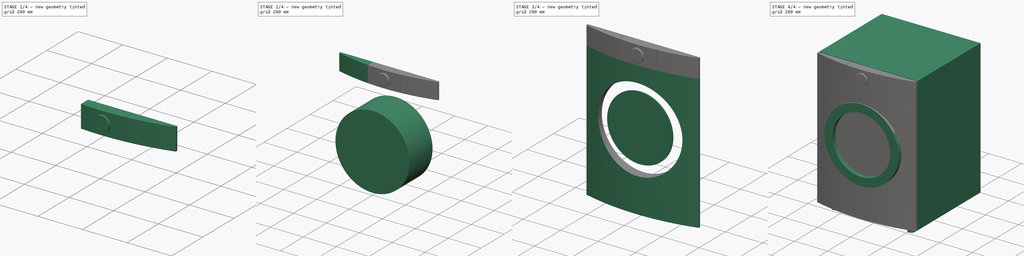
[diagram: build sequence overview — one tinted view per stage of 4, left to right]
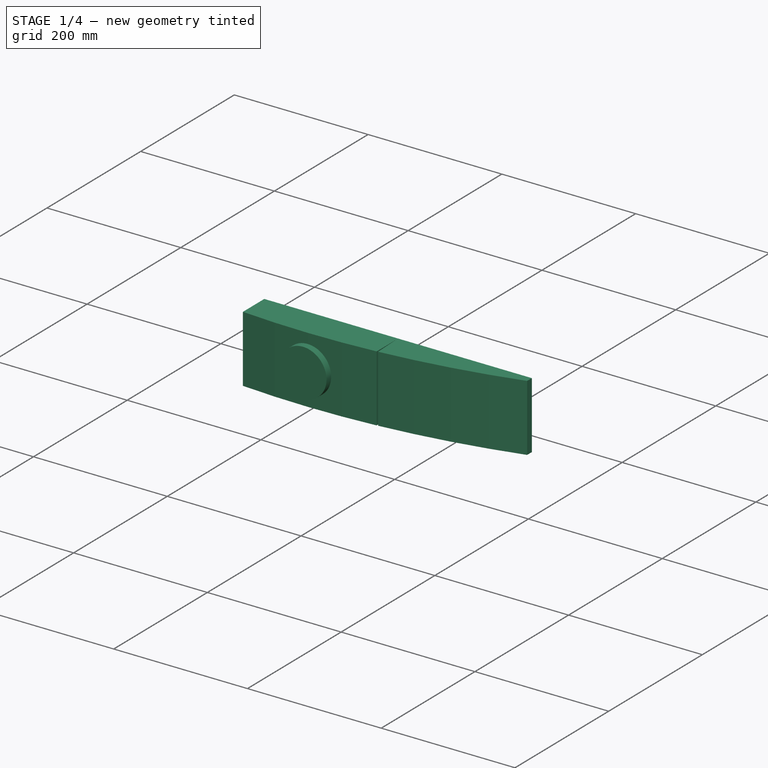
[diagram: stage 1 of 4 — iso view after this stage's code; geometry added in this stage tinted green]
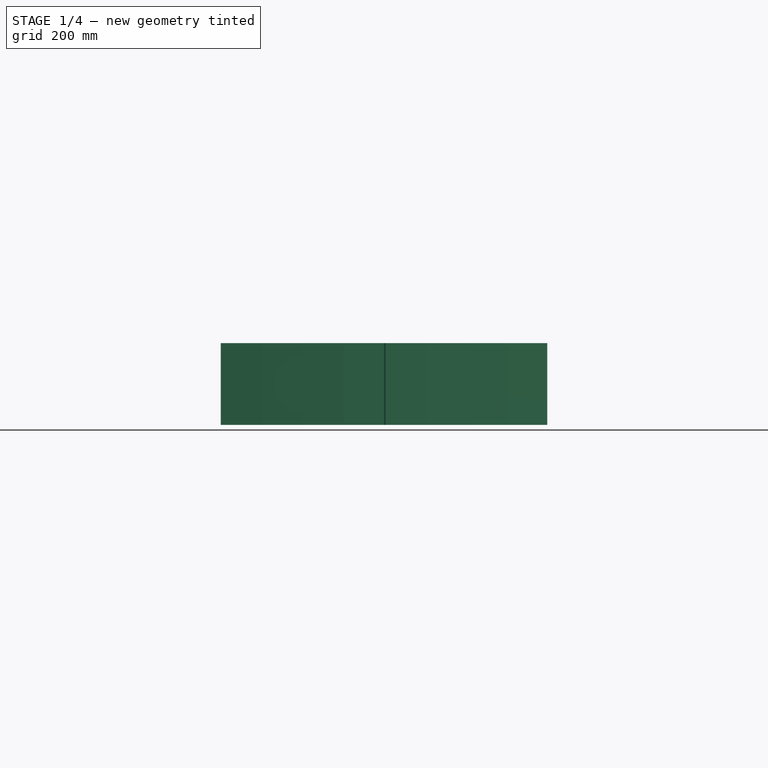
[diagram: stage 1 of 4 — front view after this stage's code; geometry added in this stage tinted green]
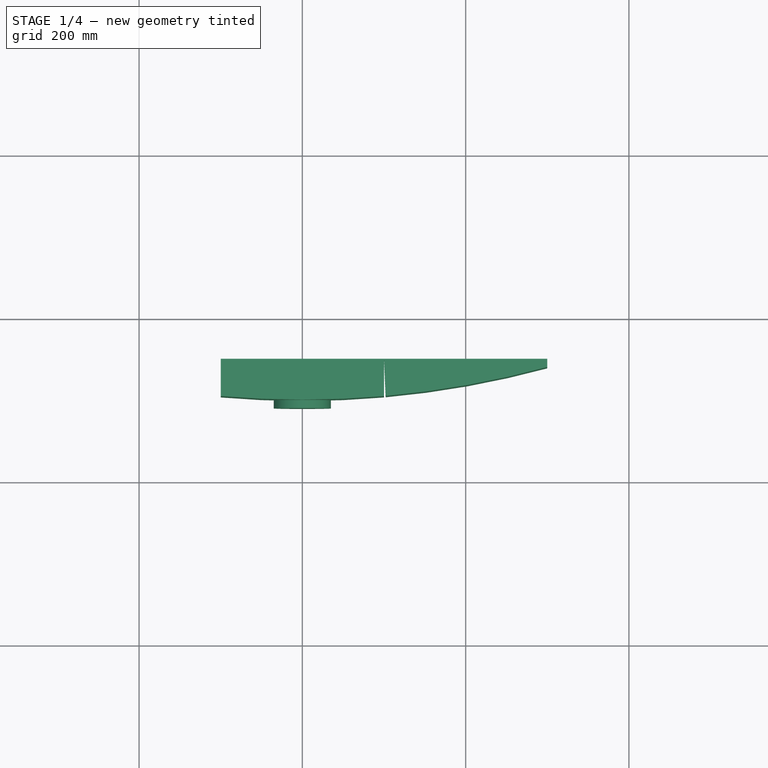
[diagram: stage 1 of 4 — top view after this stage's code; geometry added in this stage tinted green]
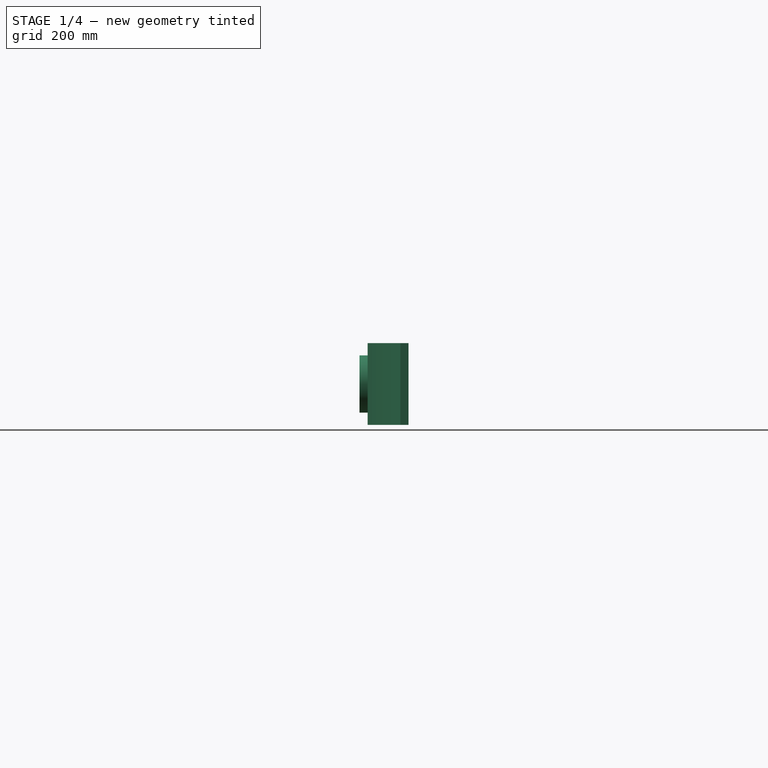
[diagram: stage 1 of 4 — right view after this stage's code; geometry added in this stage tinted green]
FCSTD DOCUMENT  (FreeCAD 0.21R33771 (Git))
Label: Washing_machine_R02
License: All rights reserved
LicenseURL: https://en.wikipedia.org/wiki/All_rights_reserved
objects: Sketcher::SketchObject×11, App::DocumentObjectGroup×10, Part::Extrusion×10, App::FeaturePython×7, App::MaterialObjectPython×6, App::TextDocument×2, App::DocumentObjectGroupPython×1, Spreadsheet::Sheet×1, Part::Cut×1, Part::Fillet×1, Part::Feature×1
note: 30 computed .brp shape members not serialized (recipe doc carries the construction recipe); baked Part::Feature solids carry a one-line shape summary decoded from their .brp

FEATURE [Sketcher::SketchObject] Sketch1072
  AttachmentOffset = pos=(0,810,300) rot=(0,0,1;0rad)
  FullyConstrained = true
  MapMode = 3
  Placement = pos=(0,-300,810) rot=(1,0,0;1.5708rad)
  Support = -> [Sketch022]
  expr: .AttachmentOffset.Base.y = Prop.Feet_B_Height + Prop.Base_dimensions_B_Height - Prop.Feet_B_Height - 50 mm
  expr: .AttachmentOffset.Base.z = Prop.Base_dimensions_B_Depth / 2
  sketch-geometry (1):
    g0: Circle CenterX=0 CenterY=0 CenterZ=0 NormalX=0 NormalY=0 NormalZ=1 AngleXU=0 Radius=35
  constraints (2):
    c: Radius(g0) = 35
    c: Coincident(g-1,g0)
FEATURE [Part::Extrusion] Extrude084143105
  Base = -> Sketch1072
  Dir = (0,-1,2e-16)
  DirMode = 2
  FaceMakerClass = Part::FaceMakerBullseye
  LengthFwd = 10
  LengthRev = 0
  Solid = true
  Symmetric = false
FEATURE [Sketcher::SketchObject] Sketch1074
  ExternalGeometry = -> [Sketch022]
  FullyConstrained = true
  MapMode = 2
  Support = -> [Sketch022]
  expr: .Constraints.Thickness = Prop.Front_panels_B_Thickness
  expr: Constraints[15] = Prop.Base_dimensions_B_Width / 3
  expr: Constraints[16] = Prop.Base_dimensions_B_Width / 3
  sketch-geometry (10):
    g0: LineSegment StartX=300 StartY=-260 StartZ=0 EndX=300 EndY=-250 EndZ=0
    g1: LineSegment StartX=300 StartY=-250 StartZ=0 EndX=-300 EndY=-250 EndZ=0
    g2: LineSegment StartX=-300 StartY=-250 StartZ=0 EndX=-300 EndY=-260 EndZ=0
    g3: ArcOfCircle CenterX=0 CenterY=845 CenterZ=0 NormalX=0 NormalY=0 NormalZ=1 AngleXU=0 Radius=1145 StartAngle=4.44729 EndAngle=4.97749
    g4: LineSegment StartX=-100 StartY=-250 StartZ=0 EndX=-100 EndY=-295.625 EndZ=0
    g5: LineSegment StartX=100 StartY=-250 StartZ=0 EndX=100 EndY=-295.625 EndZ=0
    g6: LineSegment StartX=-100 StartY=-295.625 StartZ=0 EndX=-100 EndY=-250 EndZ=0
    g7: LineSegment StartX=-100 StartY=-250 StartZ=0 EndX=100 EndY=-250 EndZ=0
    g8: LineSegment StartX=100 StartY=-250 StartZ=0 EndX=100 EndY=-295.625 EndZ=0
    g9: ArcOfCircle CenterX=0 CenterY=845 CenterZ=0 NormalX=0 NormalY=0 NormalZ=1 AngleXU=0 Radius=1145 StartAngle=4.62494 EndAngle=4.79984
  constraints (29):
    c: Coincident(g0,g1)
    c: Coincident(g1,g2)
    c: Horizontal(g1)
    c: Vertical(g0)
    c: Vertical(g2)
    c: PointOnObject(g0,g-4)
    c: PointOnObject(g3,g-2)
    c: Coincident(g3,g2)
    c: Coincident(g3,g0)
    c: PointOnObject(g1,g-3)
    c: Tangent(g3,g-5)
    c: DistanceY(g-5,g0) = 50  'Thickness'
    c: DistanceY(g0,g0) = 10
    c: Vertical(g4)
    c: Vertical(g5)
    c: DistanceX(g-5,g4) = 200
    c: DistanceX(g5,g-5) = 200
    c: PointOnObject(g4,g1)
    c: PointOnObject(g5,g1)
    c: PointOnObject(g5,g3)
    c: Coincident(g4,g6)
    c: Coincident(g6,g4)
    c: Coincident(g6,g7)
    c: Coincident(g7,g5)
    c: Coincident(g7,g8)
    c: Coincident(g8,g5)
    c: Coincident(g9,g3)
    c: Coincident(g9,g6)
    c: Coincident(g9,g8)
FEATURE [Sketcher::SketchObject] Sketch1075
  ExternalGeometry = -> [Sketch022]
  FullyConstrained = false
  MapMode = 2
  Support = -> [Sketch022]
  expr: .Constraints.Thickness = Prop.Front_panels_B_Thickness
  expr: Constraints[15] = Prop.Base_dimensions_B_Width / 3
  expr: Constraints[16] = Prop.Base_dimensions_B_Width / 3 - 2 mm
  sketch-geometry (10):
    g0: LineSegment StartX=300 StartY=-260 StartZ=0 EndX=300 EndY=-250 EndZ=0
    g1: LineSegment StartX=300 StartY=-250 StartZ=0 EndX=-300 EndY=-250 EndZ=0
    g2: LineSegment StartX=-300 StartY=-250 StartZ=0 EndX=-300 EndY=-260 EndZ=0
    g3: ArcOfCircle CenterX=0 CenterY=845 CenterZ=0 NormalX=0 NormalY=0 NormalZ=1 AngleXU=0 Radius=1145 StartAngle=4.44729 EndAngle=4.97749
    g4: LineSegment StartX=-100 StartY=-250 StartZ=0 EndX=-100 EndY=-295.625 EndZ=0
    g5: LineSegment StartX=102 StartY=-250 StartZ=0 EndX=102 EndY=-295.448 EndZ=0
    g6: ArcOfCircle CenterX=0 CenterY=845 CenterZ=0 NormalX=0 NormalY=0 NormalZ=1 AngleXU=0 Radius=1145 StartAngle=4.80159 EndAngle=4.97749
    g7: LineSegment StartX=102 StartY=-295.448 StartZ=0 EndX=100 EndY=-250 EndZ=0
    g8: LineSegment StartX=100 StartY=-250 StartZ=0 EndX=300 EndY=-250 EndZ=0
    g9: LineSegment StartX=300 StartY=-250 StartZ=0 EndX=300 EndY=-260 EndZ=0
  constraints (29):
    c: Coincident(g0,g1)
    c: Coincident(g1,g2)
    c: Horizontal(g1)
    c: Vertical(g0)
    c: Vertical(g2)
    c: PointOnObject(g0,g-4)
    c: PointOnObject(g3,g-2)
    c: Coincident(g3,g2)
    c: Coincident(g3,g0)
    c: PointOnObject(g1,g-3)
    c: Tangent(g3,g-5)
    c: DistanceY(g-5,g0) = 50  'Thickness'
    c: DistanceY(g0,g0) = 10
    c: Vertical(g4)
    c: Vertical(g5)
    c: DistanceX(g-5,g4) = 200
    c: DistanceX(g5,g-5) = 198
    c: PointOnObject(g4,g1)
    c: PointOnObject(g5,g1)
    c: PointOnObject(g4,g3)
    c: Coincident(g6,g3)
    c: Coincident(g6,g5)
    c: Coincident(g6,g0)
    c: Coincident(g6,g7)
    c: Coincident(g7,g8)
    c: Coincident(g8,g0)
    c: Horizontal(g8)
    c: Coincident(g8,g9)
    c: Coincident(g9,g6)
FEATURE [Part::Extrusion] Extrude084143106  label="02-Knob_panel_"
  Base = -> Sketch1074
  Dir = (0,0,1)
  DirMode = 2
  FaceMakerClass = Part::FaceMakerBullseye
  LengthFwd = 100
  LengthRev = 0
  Material = -> Material014
  Placement = pos=(0,0,760) rot=(0,0,1;0rad)
  Solid = true
  Symmetric = false
  expr: .Placement.Base.z = Prop.Feet_B_Height + Prop.Base_dimensions_B_Height - Prop.Feet_B_Height - 100 mm
  expr: LengthFwd = 100 mm
  expr: Material = Prop.Front_panels_C_Knob_panel_material
  expr: Visibility = Prop.Visualization_A_Visualization
FEATURE [Part::Extrusion] Extrude084143107  label="02-Display_panel"
  Base = -> Sketch1075
  Dir = (0,0,1)
  DirMode = 2
  FaceMakerClass = Part::FaceMakerBullseye
  LengthFwd = 100
  LengthRev = 0
  Material = -> Material037
  Placement = pos=(0,0,760) rot=(0,0,1;0rad)
  Solid = true
  Symmetric = false
  expr: .Placement.Base.z = Prop.Feet_B_Height + Prop.Base_dimensions_B_Height - Prop.Feet_B_Height - 100 mm
  expr: LengthFwd = 100 mm
  expr: Material = Prop.Front_panels_C_Display_panel_material
  expr: Visibility = Prop.Visualization_A_Visualization
FEATURE [App::DocumentObjectGroup] Group248  label="03-Component_parts_"
  Group = -> [Extrude,Cut,Extrude084143104,Fillet,Extrude084143106,Extrude084143107,Extrude084143103,Extrude084143101,Extrude003]
  expr: Visibility = True
FEATURE [App::FeaturePython] Section  label="Section_Plan_01"  # WARN: FeaturePython — macro-defined, semantics opaque (R4)
  Clip = false
  Depth = 0
  Objects = -> [Group248]
  OnlySolids = true
  Placement = pos=(0,0,500) rot=(0,0,1;0rad)
  UseMaterialColorForFill = false
FEATURE [App::FeaturePython] Section001  label="Section001_Plan_02"  # WARN: FeaturePython — macro-defined, semantics opaque (R4)
  Clip = false
  Depth = 0
  Objects = -> [Group248]
  OnlySolids = true
  Placement = pos=(0,0,2100) rot=(0,0,1;0rad)
  UseMaterialColorForFill = false
FEATURE [App::FeaturePython] Section002  label="Section002_Lateral_01"  # WARN: FeaturePython — macro-defined, semantics opaque (R4)
  Clip = false
  Depth = 0
  Objects = -> [Group248]
  OnlySolids = true
  Placement = pos=(1500,0,600) rot=(0.57735,0.57735,0.57735;2.0944rad)
  UseMaterialColorForFill = false
FEATURE [App::FeaturePython] Section003  label="Section003_Transversal"  # WARN: FeaturePython — macro-defined, semantics opaque (R4)
  Clip = false
  Depth = 0
  Objects = -> [Group248]
  OnlySolids = true
  Placement = pos=(0,0,600) rot=(0.57735,0.57735,0.57735;2.0944rad)
  UseMaterialColorForFill = false
FEATURE [App::FeaturePython] Section004  label="Section004_Lateral_02"  # WARN: FeaturePython — macro-defined, semantics opaque (R4)
  Clip = false
  Depth = 0
  Objects = -> [Group248]
  OnlySolids = true
  Placement = pos=(-1500,0,600) rot=(-0.57735,0.57735,0.57735;4.18879rad)
  UseMaterialColorForFill = false
FEATURE [App::FeaturePython] Section005  label="Section005_Frontal_"  # WARN: FeaturePython — macro-defined, semantics opaque (R4)
  Clip = false
  Depth = 0
  Objects = -> [Group248]
  OnlySolids = true
  Placement = pos=(0,-1300,600) rot=(1,0,0;1.5708rad)
  UseMaterialColorForFill = false
FEATURE [App::DocumentObjectGroup] Group001  label="Section"
  Group = -> [Section,Section001,Section002,Section003,Section004,Section005]
FEATURE [App::DocumentObjectGroup] Group246  label="02-Elements_to_move_rotate_"
  Group = -> [Sketch022,Group001]
FEATURE [App::DocumentObjectGroup] Group  label="04-Spreadsheet_"
  Group = -> [Spreadsheet003]
FEATURE [App::DocumentObjectGroup] Group249  label="05-Materials_"
  Group = -> [MaterialContainer]
FEATURE [App::TextDocument] Text_document001  label="Guidelines_new_objects_properties_"
  Text = <blob: 2847 chars omitted>
FEATURE [App::TextDocument] Text_document  label="Guidelines_washing_machine_file_configurations_"
  Text = Some guidelines for using this component file.\n-----------------------------------------\n\n1. Basic workflow for component configuration (see video)\n\nThrough the properties window ("01-Prop_Washing_machine_configurations_#_") it is possible to configure the basic dimensions of the component (height, length, and depth) and its parts such as panels (main and superiores), and door, as well their respective materials.\n\n2. Component insertion\n\nOpen the "02-Elements_to_move_rotate" folder and select the "Washing_machine_base_move_rotate_#_" Sketch. If you are going to use the 2D projections of the component in your project, also select the sections from the “Sections” folder as needed (for plans, sections, and views).\n\nDrag the selection to the final insertion position of the component in the project, rotating it later if necessary. Make new configurations of the component if necessary.\n\n3. To generate the corresponding 2D projections, use the pre-established sections by adding the necessary objects to them and click on "Shape 2D view" (Draft_Shape2DView).\n\n4. Cautions:\n\n4.1. Set dimensions and quantities close to those used in reality, otherwise it could destroy the structure of a piece or the assembly itself.\n\n4.2. Where applicable, one of the main considerations when configuring arrays is to avoid accidentally assign large values ​​(hundreds or thousands) for the quantities of parts of the part, for example.\n\n4.4. When searching for a profile or material, use the folder according to the type one is looking for, this will make the task much easier. Materials, for example, are organized into different groups (see video).
FEATURE [App::DocumentObjectGroup] Group250  label="06-Guidelines_"
  Group = -> [Text_document,Text_document001]
FEATURE [Part::Feature] Prop  label="01-Prop_Washing_machine_configurations_#_"
  Base_dimensions_B_Depth = 600
  Base_dimensions_B_Height = 860
  Base_dimensions_B_Width = 600
  Body_C_Material = -> Material042
  Door_B_Diameter = 450
  Door_B_Vertical_position = 450
  Door_C_Material = -> Material037
  Door_frame_B_Thickness = 50
  Door_frame_C_Material = -> Material014
  Feet_B_Diameter = 40
  Feet_B_Height = 40
  Feet_C_Material = -> Material014
  Front_panels_B_Thickness = 50
  Front_panels_C_Detergent_drawer_material = -> Material014
  Front_panels_C_Display_panel_material = -> Material037
  Front_panels_C_Front_panel_material = -> Material042
  Front_panels_C_Knob_material = -> Material042
  Front_panels_C_Knob_panel_material = -> Material014
  Visualization_A_Visualization = true
FEATURE [App::DocumentObjectGroup] Group253  label="Washing_machine_#_"
  Group = -> [Prop,Group246,Group248,Group,Group249,Group250]
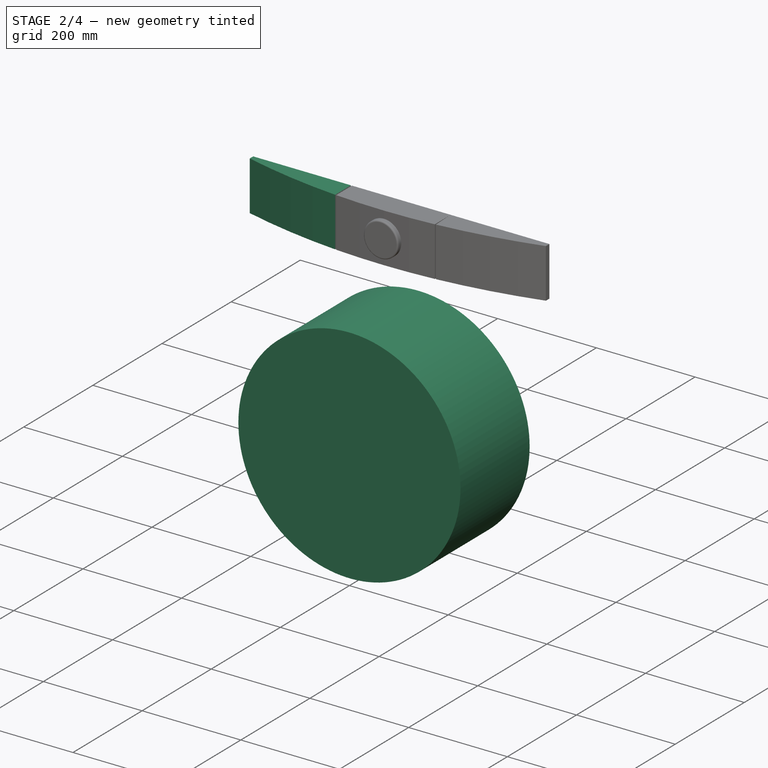
[diagram: stage 2 of 4 — iso view after this stage's code; geometry added in this stage tinted green]
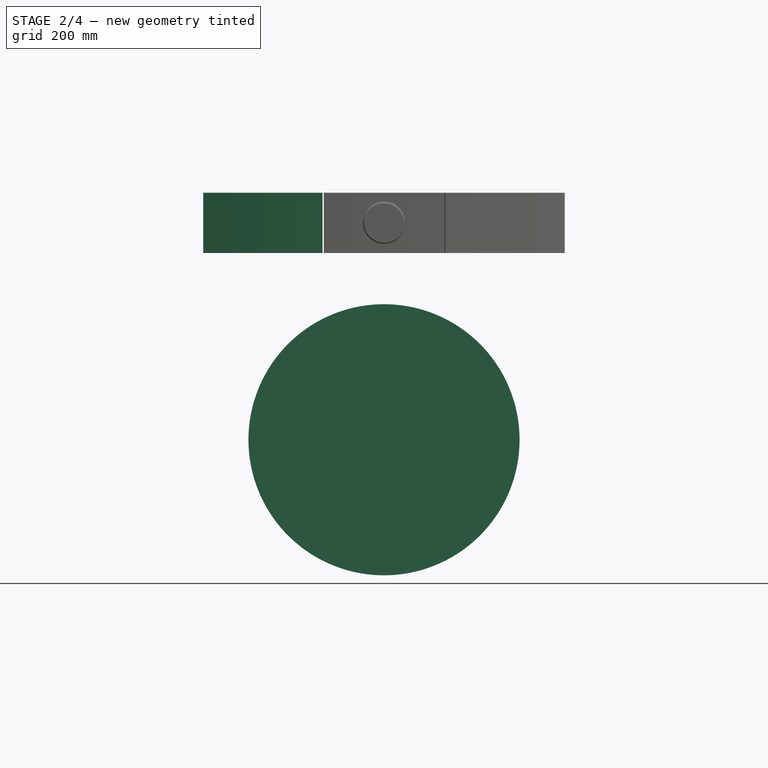
[diagram: stage 2 of 4 — front view after this stage's code; geometry added in this stage tinted green]
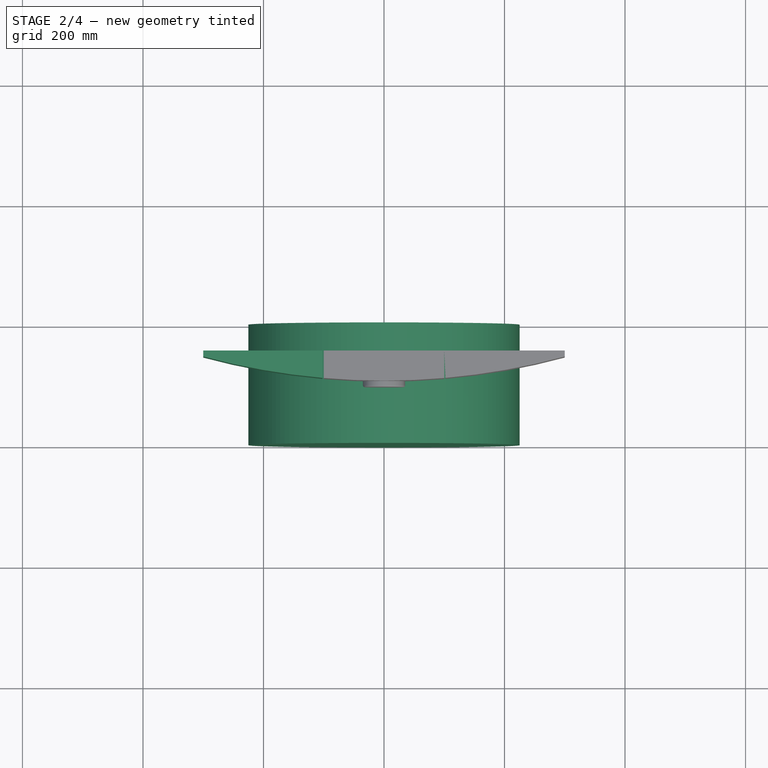
[diagram: stage 2 of 4 — top view after this stage's code; geometry added in this stage tinted green]
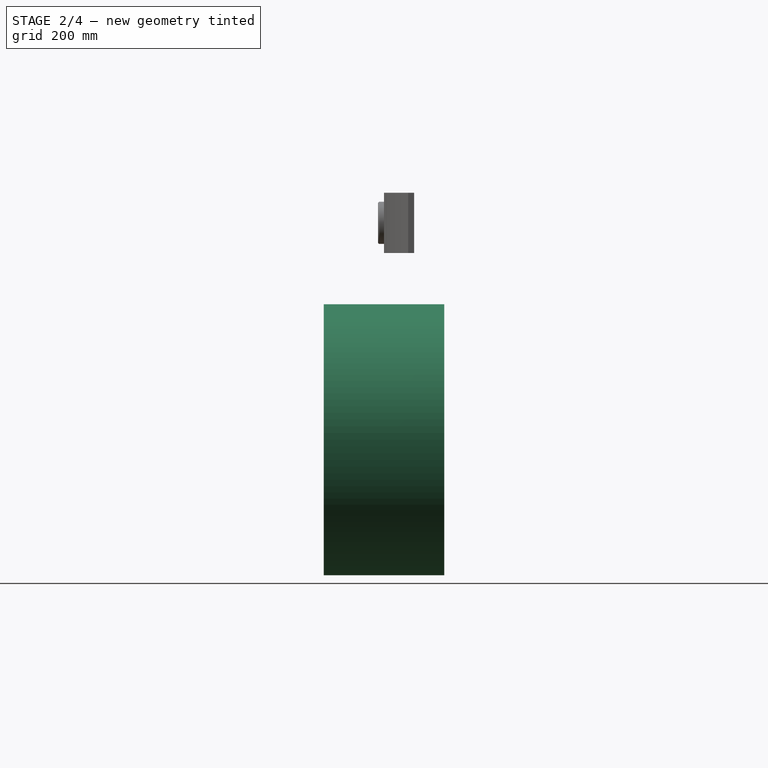
[diagram: stage 2 of 4 — right view after this stage's code; geometry added in this stage tinted green]
FEATURE [Sketcher::SketchObject] Sketch1070  label="Sketch1070_Dooor_opening_"
  AttachmentOffset = pos=(0,450,300) rot=(0,0,1;0rad)
  FullyConstrained = true
  MapMode = 3
  Placement = pos=(0,-300,450) rot=(1,0,0;1.5708rad)
  Support = -> [Sketch022]
  expr: .AttachmentOffset.Base.y = Prop.Door_B_Vertical_position
  expr: .AttachmentOffset.Base.z = Prop.Base_dimensions_B_Depth / 2
  expr: .Constraints.Radius = Prop.Door_B_Diameter / 2
  sketch-geometry (1):
    g0: Circle CenterX=0 CenterY=0 CenterZ=0 NormalX=0 NormalY=0 NormalZ=1 AngleXU=0 Radius=225
  constraints (2):
    c: Radius(g0) = 225  'Radius'
    c: Coincident(g0,g-1)
FEATURE [Part::Extrusion] Extrude084143102
  Base = -> Sketch1070
  Dir = (0,-1,2e-16)
  DirMode = 2
  FaceMakerClass = Part::FaceMakerBullseye
  LengthFwd = 200
  LengthRev = 0
  Solid = true
  Symmetric = true
FEATURE [Part::Fillet] Fillet  label="02-Knob_"
  Base = -> Extrude084143105
  Edges = 1 edges r=3: [Edge3]
  Material = -> Material042
  expr: Material = Prop.Front_panels_C_Knob_material
  expr: Visibility = Prop.Visualization_A_Visualization
FEATURE [Sketcher::SketchObject] Sketch1073
  ExternalGeometry = -> [Sketch022]
  FullyConstrained = false
  MapMode = 2
  Support = -> [Sketch022]
  expr: .Constraints.Thickness = Prop.Front_panels_B_Thickness
  expr: Constraints[15] = Prop.Base_dimensions_B_Width / 3 - 2 mm
  expr: Constraints[16] = Prop.Base_dimensions_B_Width / 3
  sketch-geometry (13):
    g0: LineSegment StartX=300 StartY=-260 StartZ=0 EndX=300 EndY=-250 EndZ=0
    g1: LineSegment StartX=300 StartY=-250 StartZ=0 EndX=-300 EndY=-250 EndZ=0
    g2: LineSegment StartX=-300 StartY=-250 StartZ=0 EndX=-300 EndY=-260 EndZ=0
    g3: ArcOfCircle CenterX=0 CenterY=845 CenterZ=0 NormalX=0 NormalY=0 NormalZ=1 AngleXU=0 Radius=1145 StartAngle=4.44729 EndAngle=4.97749
    g4: LineSegment StartX=-102 StartY=-250 StartZ=0 EndX=-102 EndY=-295.448 EndZ=0
    g5: LineSegment StartX=100 StartY=-250 StartZ=0 EndX=100 EndY=-295.625 EndZ=0
    g6: LineSegment StartX=-102 StartY=-250 StartZ=0 EndX=-300 EndY=-250 EndZ=0
    g7: LineSegment StartX=-300 StartY=-250 StartZ=0 EndX=-300 EndY=-260 EndZ=0
    g8: LineSegment StartX=-100 StartY=-295.625 StartZ=0 EndX=-102 EndY=-250 EndZ=0
    g9: ArcOfCircle CenterX=0 CenterY=845 CenterZ=0 NormalX=0 NormalY=0 NormalZ=1 AngleXU=0 Radius=1145 StartAngle=4.44729 EndAngle=4.62319
    g10: LineSegment StartX=-300 StartY=-260 StartZ=0 EndX=-300 EndY=-250 EndZ=0
    g11: LineSegment StartX=-300 StartY=-250 StartZ=0 EndX=-102 EndY=-250 EndZ=0
    g12: LineSegment StartX=-102 StartY=-250 StartZ=0 EndX=-102 EndY=-295.448 EndZ=0
  constraints (34):
    c: Coincident(g0,g1)
    c: Coincident(g1,g2)
    c: Horizontal(g1)
    c: Vertical(g0)
    c: Vertical(g2)
    c: PointOnObject(g0,g-4)
    c: PointOnObject(g3,g-2)
    c: Coincident(g3,g2)
    c: Coincident(g3,g0)
    c: PointOnObject(g1,g-3)
    c: Tangent(g3,g-5)
    c: DistanceY(g-5,g0) = 50  'Thickness'
    c: DistanceY(g0,g0) = 10
    c: Vertical(g4)
    c: Vertical(g5)
    c: DistanceX(g-5,g4) = 198
    c: DistanceX(g5,g-5) = 200
    c: PointOnObject(g4,g1)
    c: PointOnObject(g5,g1)
    c: PointOnObject(g5,g3)
    c: Coincident(g4,g6)
    c: Coincident(g6,g1)
    c: Coincident(g6,g7)
    c: Coincident(g7,g2)
    c: Coincident(g8,g6)
    c: Coincident(g9,g3)
    c: Coincident(g9,g2)
    c: Coincident(g9,g4)
    c: Coincident(g9,g10)
    c: Coincident(g10,g1)
    c: Coincident(g10,g11)
    c: Coincident(g11,g4)
    c: Coincident(g11,g12)
    c: Coincident(g12,g9)
FEATURE [Part::Extrusion] Extrude084143104  label="02-Detergent_drawer_"
  Base = -> Sketch1073
  Dir = (0,0,1)
  DirMode = 2
  FaceMakerClass = Part::FaceMakerBullseye
  LengthFwd = 100
  LengthRev = 0
  Material = -> Material014
  Placement = pos=(0,0,760) rot=(0,0,1;0rad)
  Solid = true
  Symmetric = false
  expr: .Placement.Base.z = Prop.Feet_B_Height + Prop.Base_dimensions_B_Height - Prop.Feet_B_Height - 100 mm
  expr: LengthFwd = 100 mm
  expr: Material = Prop.Front_panels_C_Detergent_drawer_material
  expr: Visibility = Prop.Visualization_A_Visualization
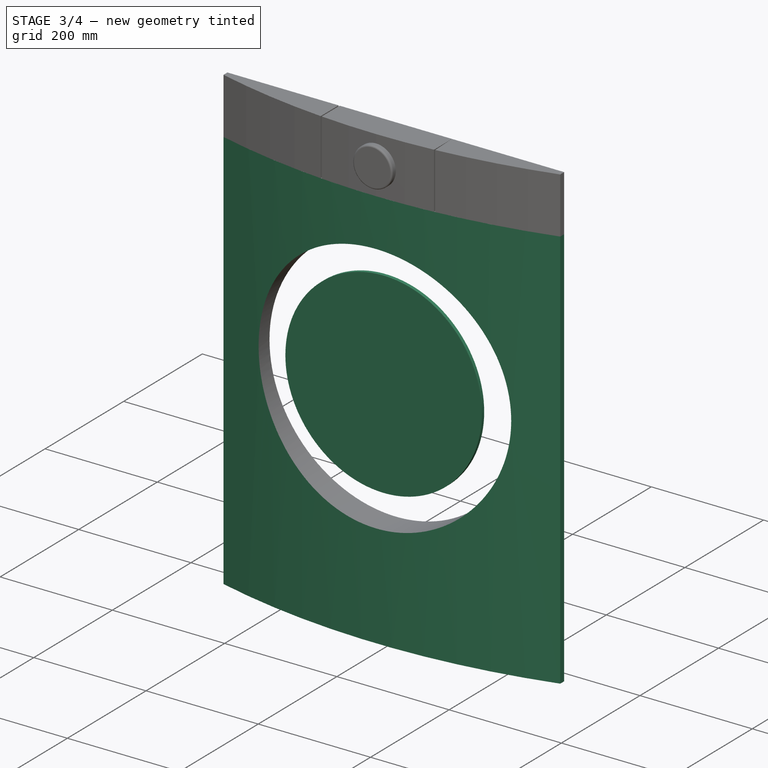
[diagram: stage 3 of 4 — iso view after this stage's code; geometry added in this stage tinted green]
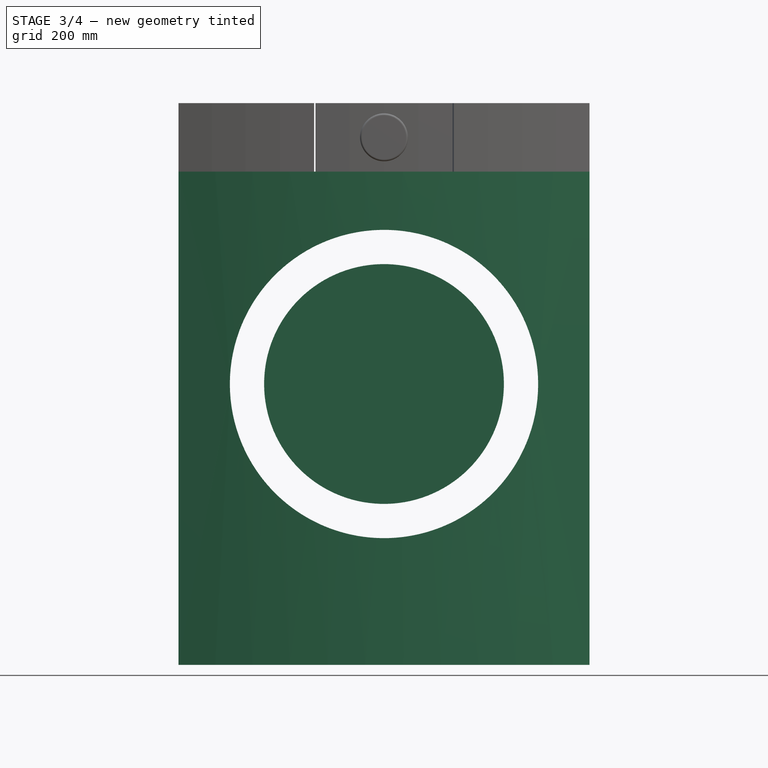
[diagram: stage 3 of 4 — front view after this stage's code; geometry added in this stage tinted green]
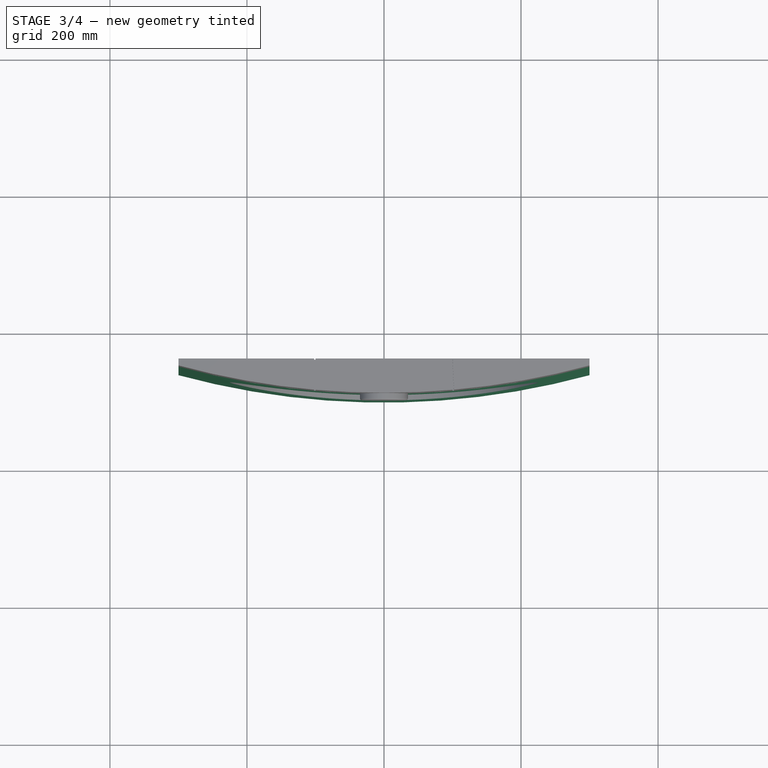
[diagram: stage 3 of 4 — top view after this stage's code; geometry added in this stage tinted green]
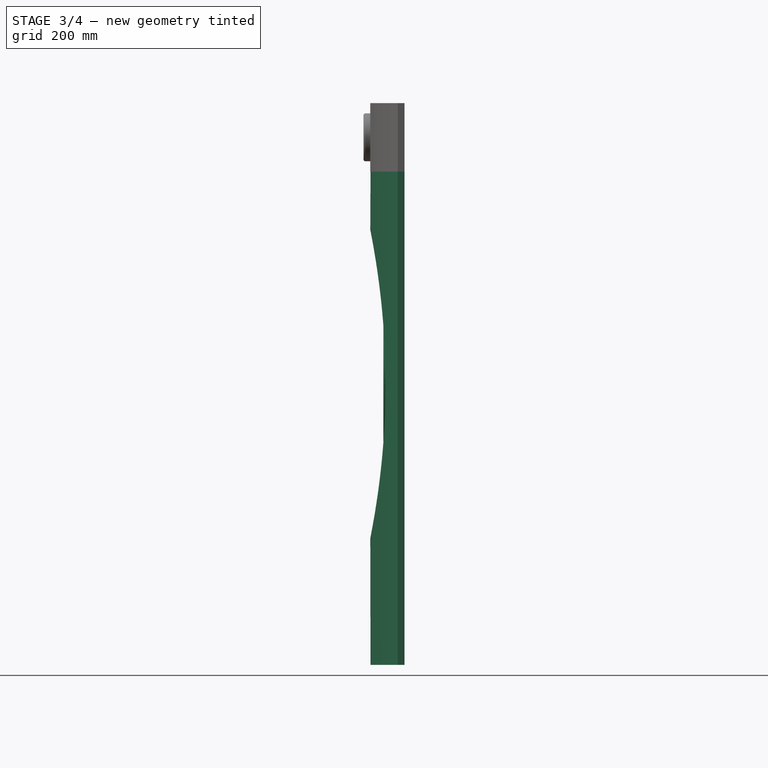
[diagram: stage 3 of 4 — right view after this stage's code; geometry added in this stage tinted green]
FEATURE [Sketcher::SketchObject] Sketch027
  ExternalGeometry = -> [Sketch022]
  FullyConstrained = true
  MapMode = 2
  Support = -> [Sketch022]
  expr: .Constraints.Thickness = Prop.Front_panels_B_Thickness
  sketch-geometry (4):
    g0: LineSegment StartX=300 StartY=-260 StartZ=0 EndX=300 EndY=-250 EndZ=0
    g1: LineSegment StartX=300 StartY=-250 StartZ=0 EndX=-300 EndY=-250 EndZ=0
    g2: LineSegment StartX=-300 StartY=-250 StartZ=0 EndX=-300 EndY=-260 EndZ=0
    g3: ArcOfCircle CenterX=0 CenterY=845 CenterZ=0 NormalX=0 NormalY=0 NormalZ=1 AngleXU=0 Radius=1145 StartAngle=4.44729 EndAngle=4.97749
  constraints (13):
    c: Coincident(g0,g1)
    c: Coincident(g1,g2)
    c: Horizontal(g1)
    c: Vertical(g0)
    c: Vertical(g2)
    c: PointOnObject(g0,g-4)
    c: PointOnObject(g3,g-2)
    c: Coincident(g3,g2)
    c: Coincident(g3,g0)
    c: PointOnObject(g1,g-3)
    c: Tangent(g3,g-5)
    c: DistanceY(g-5,g0) = 50  'Thickness'
    c: DistanceY(g0,g0) = 10
FEATURE [Part::Extrusion] Extrude007  label="02-Front_panel_"
  Base = -> Sketch027
  Dir = (0,0,1)
  DirMode = 2
  FaceMakerClass = Part::FaceMakerBullseye
  LengthFwd = 720
  LengthRev = 0
  Placement = pos=(0,0,40) rot=(0,0,1;0rad)
  Solid = true
  Symmetric = false
  expr: .Placement.Base.z = Prop.Feet_B_Height
  expr: LengthFwd = Prop.Base_dimensions_B_Height - Prop.Feet_B_Height - 100 mm
FEATURE [Sketcher::SketchObject] Sketch1071  label="Sketch1071_glass_"
  AttachmentOffset = pos=(0,450,275) rot=(0,0,1;0rad)
  FullyConstrained = true
  MapMode = 3
  Placement = pos=(0,-275,450) rot=(1,0,0;1.5708rad)
  Support = -> [Sketch022]
  expr: .AttachmentOffset.Base.y = Prop.Door_B_Vertical_position
  expr: .AttachmentOffset.Base.z = Prop.Base_dimensions_B_Depth / 2 - Prop.Front_panels_B_Thickness / 2
  expr: .Constraints.Radius = Prop.Door_B_Diameter / 2 - Prop.Door_frame_B_Thickness
  sketch-geometry (1):
    g0: Circle CenterX=0 CenterY=0 CenterZ=0 NormalX=0 NormalY=0 NormalZ=1 AngleXU=0 Radius=175
  constraints (2):
    c: Radius(g0) = 175  'Radius'
    c: Coincident(g0,g-1)
FEATURE [Part::Extrusion] Extrude084143103  label="03-Door_glass"
  Base = -> Sketch1071
  Dir = (0,-1,2e-16)
  DirMode = 2
  FaceMakerClass = Part::FaceMakerBullseye
  LengthFwd = 6
  LengthRev = 0
  Material = -> Material037
  Solid = true
  Symmetric = false
  expr: Material = Prop.Door_C_Material
  expr: Visibility = Prop.Visualization_A_Visualization
FEATURE [Part::Cut] Cut  label="02-Front_panel_001"
  Base = -> Extrude007
  Material = -> Material042
  Tool = -> Extrude084143102
  expr: Material = Prop.Front_panels_C_Front_panel_material
  expr: Visibility = Prop.Visualization_A_Visualization
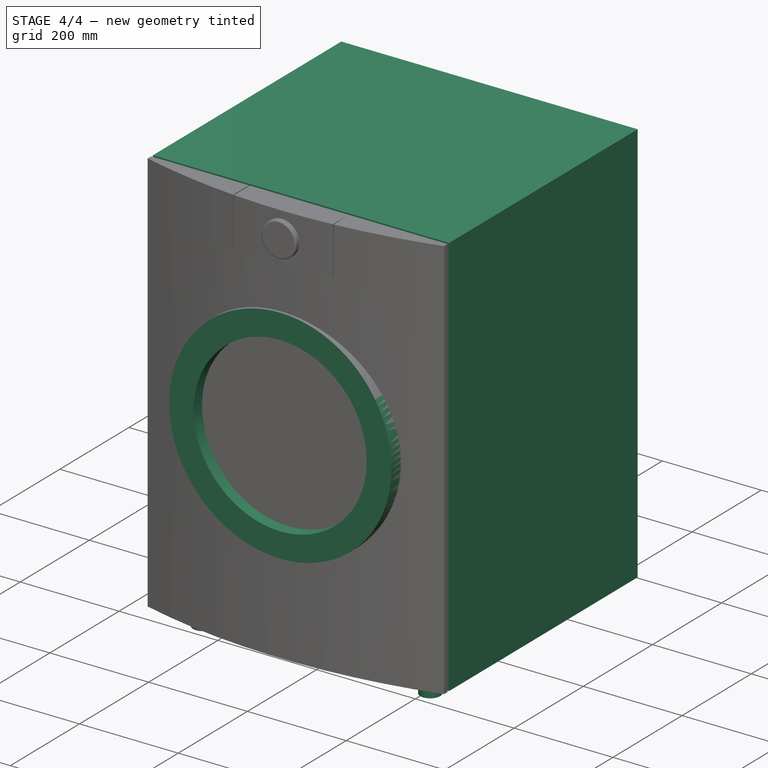
[diagram: stage 4 of 4 — iso view after this stage's code; geometry added in this stage tinted green]
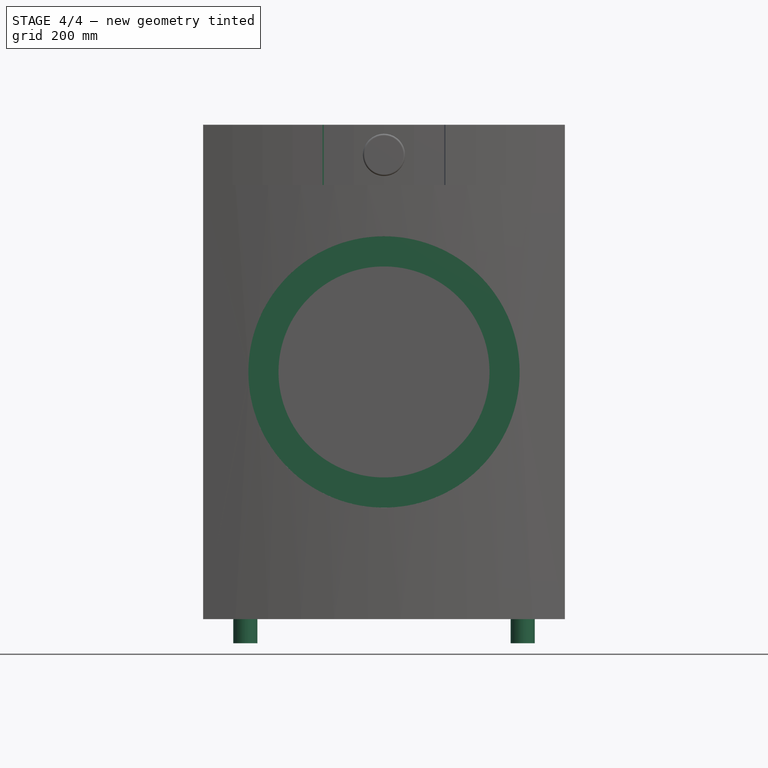
[diagram: stage 4 of 4 — front view after this stage's code; geometry added in this stage tinted green]
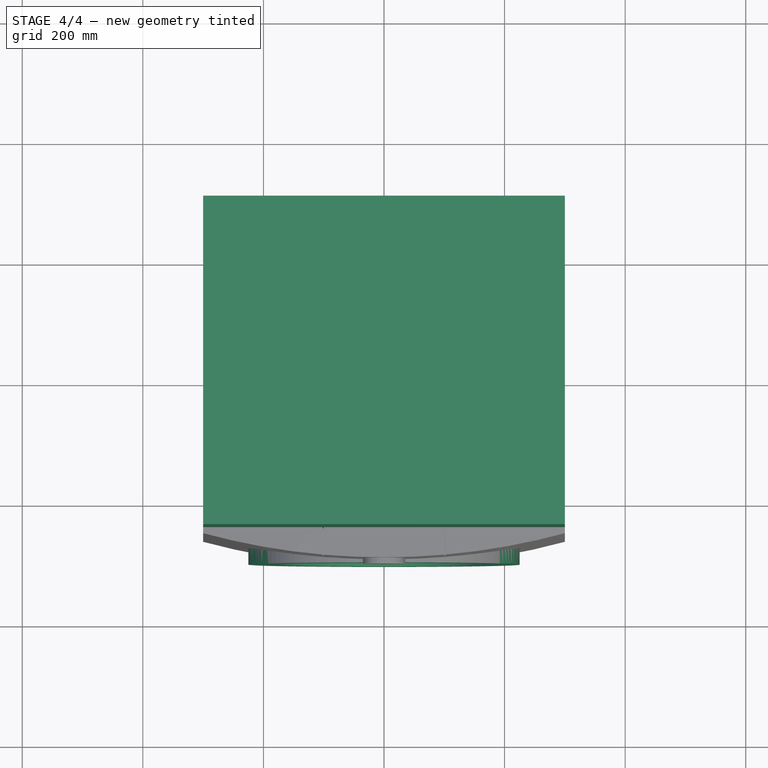
[diagram: stage 4 of 4 — top view after this stage's code; geometry added in this stage tinted green]
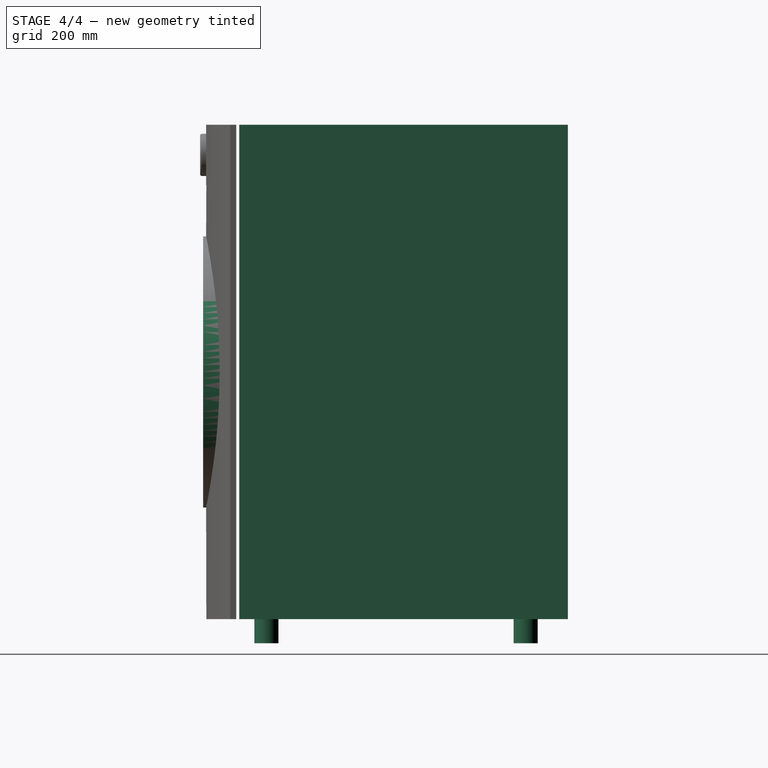
[diagram: stage 4 of 4 — right view after this stage's code; geometry added in this stage tinted green]
FEATURE [App::MaterialObjectPython] Material  label="aluminium"  # material (typed FeaturePython)
  Description = Aluminium Material for Render
  Material = <blob: 2719 chars omitted>
  Transparency = 0
FEATURE [App::MaterialObjectPython] Material022  label="glass"  # material (typed FeaturePython)
  Description = Glass Material for Render
  Material = Color=(0.8, 0.8, 0.8, 1.0); Description=Glass Material for Render; DiffuseColor=(0.8, 0.8, 0.8, 1.0); Name=glass; Render.ForceUVMap=False; Render.Glass.Color=(1.0,1.0,1.0); Render.Glass.IOR=1.7; Render.Type=Glass; SectionColor=(0.8, 0.8, 0.8, 1.0); Transparency=0; UseObjectColor=True; ViewColor=(0.8, 0.8, 0.8, 1.0)
  Transparency = 0
FEATURE [App::MaterialObjectPython] Material037  label="black tempered glass"  # material (typed FeaturePython)
  Description = Glass Material for Render
  Material = Color=(0.8, 0.8, 0.8, 1.0); Description=Glass Material for Render; DiffuseColor=(0.8, 0.8, 0.8, 1.0); Name=black tempered glass; Render.ForceUVMap=False; Render.Glass.Color=(0.23137254901960785,0.23137254901960785,0.23137254901960785); Render.Glass.IOR=1.8; Render.Mixed.Diffuse.Color=(1.0,1.0,1.0); Render.Mixed.Glass.Color=(1.0,1.0,1.0); Render.Mixed.Glass.IOR=2.0; Render.Mixed.Transparency=0.85; Render.Type=Glass; SectionColor=(0.8, 0.8, 0.8, 1.0); Transparency=0; UseObjectColor=True; ViewColor=(0.8, 0.8, 0.8, 1.0)
  Transparency = 0
FEATURE [App::DocumentObjectGroup] Group230  label="Glass_"
  Group = -> [Material022,Material037]
FEATURE [App::MaterialObjectPython] Material041  label="white plastic"  # material (typed FeaturePython)
  Description = Glossy Plastic Material for Render
  Material = Color=(0.8, 0.8, 0.8, 1.0); Description=Glossy Plastic Material for Render; DiffuseColor=(0.8, 0.8, 0.8, 1.0); Name=white plastic; Render.Disney.Anisotropic=0.0; Render.Disney.BaseColor=(1.0,1.0,1.0); Render.Disney.ClearCoat=0.0; Render.Disney.ClearCoatGloss=0.0; Render.Disney.Metallic=0.0; Render.Disney.Roughness=0.1; Render.Disney.Sheen=0.0; Render.Disney.SheenTint=0.0; Render.Disney.Specular=0.5; Render.Disney.SpecularTint=0.0; Render.Disney.Subsurface=0.0; Render.ForceUVMap=False; Render.Ospray.0001=# use coat instead of specular; Render.Ospray.0002=type principled; Render.Ospray.0003=baseColor %RED% %GREEN% %BLUE%; Render.Ospray.0004=roughness 0.4; Render.Ospray.0005=coat 0.8; Render.Ospray.0006=coatRoughness 0.1; Render.Pbrt.0001=Material "coateddiffuse"; Render.Pbrt.0002="rgb reflectance" [ %RED% %GREEN% %BLUE% ]; Render.Pbrt.0003="float roughness" [ 0.1 ]; Render.Type=Disney; SectionColor=(0.8, 0.8, 0.8, 1.0); Transparency=0; UseObjectColor=True; ViewColor=(0.8, 0.8, 0.8, 1.0)
  Transparency = 0
FEATURE [App::MaterialObjectPython] Material042  label="stainless steel"  # material (typed FeaturePython)
  Description = Iron Material for Render
  Material = Color=(0.7686274509803922, 0.7803921568627451, 0.7803921568627451, 1.0); Description=Iron Material for Render; DiffuseColor=(0.7686274509803922, 0.7803921568627451, 0.7803921568627451, 1.0); Name=stainless steel; Render.Disney.Anisotropic=0.0; Render.Disney.BaseColor=(0.77, 0.78, 0.78); Render.Disney.ClearCoat=0.0; Render.Disney.ClearCoatGloss=0.0; Render.Disney.Metallic=1.0; Render.Disney.Roughness=0.3; Render.Disney.Sheen=0.0; Render.Disney.SheenTint=0.0; Render.Disney.Specular=0.0; Render.Disney.SpecularTint=0.0; Render.Disney.Subsurface=0.0; Render.Ospray.0001=type metal; Render.Ospray.0002=# from refractiveindex.info, for wl 700, 550, 450; Render.Ospray.0003=eta 2.8653 2.9497 2.5845; Render.Ospray.0004=k 3.1820 2.9318 2.7670; Render.Ospray.0005=roughness 0.1; Render.Pbrt.0001=Material "conductor"; Render.Pbrt.0002="spectrum eta" [ "metal-Ag-eta" ]; Render.Pbrt.0003="spectrum k" [ "metal-Ag-k" ]; Render.Pbrt.0004="float roughness" [ 0.01 ]; Render.Povray.0001=finish {; Render.Povray.0002=brilliance 4; Render.Povray.0003=diffuse 0; Render.Povray.0004=ambient <0.77 0.78 0.78>; Render.Povray.0005=reflection <0.77 0.78 0.78>; Render.Povray.0006=metallic 1; Render.Povray.0007=specular 0.60; Render.Povray.0008=roughness 1/20; Render.Povray.0009=}; Render.Type=Disney; SectionColor=(0.7686274509803922, 0.7803921568627451, 0.7803921568627451, 1.0); Transparency=0; UseObjectColor=False; ViewColor=(0.7686274509803922, 0.7803921568627451, 0.7803921568627451, 1.0)
  Transparency = 0
FEATURE [App::DocumentObjectGroup] Group229  label="Metal_"
  Group = -> [Material,Material042]
FEATURE [Sketcher::SketchObject] Sketch022  label="Washing_machine_base_move_rotate_#_"
  FullyConstrained = true
  expr: .Constraints.Depth = Prop.Base_dimensions_B_Depth
  expr: .Constraints.Width = Prop.Base_dimensions_B_Width
  expr: Constraints[32] = Prop.Front_panels_B_Thickness
  sketch-geometry (12):
    g0: LineSegment StartX=-300 StartY=300 StartZ=0 EndX=300 EndY=300 EndZ=0
    g1: LineSegment StartX=300 StartY=300 StartZ=0 EndX=300 EndY=-300 EndZ=0
    g2: LineSegment StartX=300 StartY=-300 StartZ=0 EndX=-300 EndY=-300 EndZ=0
    g3: LineSegment StartX=-300 StartY=-300 StartZ=0 EndX=-300 EndY=300 EndZ=0
    g4: LineSegment StartX=-400 StartY=0 StartZ=0 EndX=400 EndY=0 EndZ=0
    g5: LineSegment StartX=0 StartY=400 StartZ=0 EndX=0 EndY=-400 EndZ=0
    g6: LineSegment StartX=-300 StartY=-250 StartZ=0 EndX=300 EndY=-250 EndZ=0
    g7: Circle CenterX=0 CenterY=0 CenterZ=0 NormalX=0 NormalY=0 NormalZ=1 AngleXU=0 Radius=75
    g8: LineSegment StartX=-400 StartY=400 StartZ=0 EndX=400 EndY=400 EndZ=0
    g9: LineSegment StartX=400 StartY=400 StartZ=0 EndX=400 EndY=-400 EndZ=0
    g10: LineSegment StartX=400 StartY=-400 StartZ=0 EndX=-400 EndY=-400 EndZ=0
    g11: LineSegment StartX=-400 StartY=-400 StartZ=0 EndX=-400 EndY=400 EndZ=0
  constraints (34):
    c: Coincident(g0,g1)
    c: Coincident(g1,g2)
    c: Coincident(g2,g3)
    c: Coincident(g3,g0)
    c: Horizontal(g2)
    c: Vertical(g1)
    c: DistanceX(g2,g2) = 600  'Width'
    c: DistanceY(g3,g3) = 600  'Depth'
    c: Symmetric(g0,g0,g-2)
    c: Symmetric(g0,g2,g-1)
    c: PointOnObject(g4,g-1)
    c: PointOnObject(g4,g-1)
    c: PointOnObject(g5,g-2)
    c: PointOnObject(g5,g-2)
    c: PointOnObject(g6,g3)
    c: PointOnObject(g6,g1)
    c: Horizontal(g6)
    c: Coincident(g7,g-1)
    c: Coincident(g8,g9)
    c: Coincident(g9,g10)
    c: Coincident(g10,g11)
    c: Coincident(g11,g8)
    c: Horizontal(g10)
    c: Vertical(g11)
    c: Symmetric(g8,g8,g-2)
    c: Symmetric(g8,g9,g-1)
    c: PointOnObject(g5,g8)
    c: PointOnObject(g4,g11)
    c: PointOnObject(g4,g9)
    c: PointOnObject(g5,g10)
    c: DistanceX(g8,g0) = 100
    c: DistanceY(g0,g8) = 100
    c: DistanceY(g1,g6) = 50
    c: Diameter(g7) = 150
FEATURE [App::FeaturePython] Texture011  # WARN: FeaturePython — macro-defined, semantics opaque (R4)
  Rotation = 0
  TranslationU = 0
  TranslationV = 0
FEATURE [App::MaterialObjectPython] Material014  label="black plastic"  # material (typed FeaturePython)
  Group = -> [Texture011]
  Material = Name=black plastic; Render.Disney.Anisotropic=0.0; Render.Disney.BaseColor=0.00784314, 0.00784314, 0.00784314; Render.Disney.ClearCoat=0.0; Render.Disney.ClearCoatGloss=0.8980392217636108; Render.Disney.Metallic=0.0; Render.Disney.Normal=Texture;('Texture011', 'Image', 1.0); Render.Disney.Roughness=0.09803921729326248; Render.Disney.Sheen=0.0; Render.Disney.SheenTint=0.0; Render.Disney.Specular=0.501960813999176; Render.Disney.SpecularTint=0.0; Render.Disney.Subsurface=0.0; Render.Type=Disney; SectionColor=(0.0, 0.0, 0.0); Transparency=0
  Transparency = 0
FEATURE [App::DocumentObjectGroup] Group228  label="Plastic"
  Group = -> [Material014,Material041]
FEATURE [App::DocumentObjectGroupPython] MaterialContainer  label="02-Materials"  # scripted group (container) (typed FeaturePython)
  Group = -> [Group230,Group229,Group228]
FEATURE [Sketcher::SketchObject] Sketch  label="Body_"
  AttachmentOffset = pos=(0,0,40) rot=(0,0,1;0rad)
  ExternalGeometry = -> [Sketch022]
  FullyConstrained = true
  MapMode = 2
  Placement = pos=(0,0,40) rot=(0,0,1;0rad)
  Support = -> [Sketch022]
  expr: .AttachmentOffset.Base.z = Prop.Feet_B_Height
  sketch-geometry (4):
    g0: LineSegment StartX=-300 StartY=300 StartZ=0 EndX=300 EndY=300 EndZ=0
    g1: LineSegment StartX=300 StartY=300 StartZ=0 EndX=300 EndY=-245 EndZ=0
    g2: LineSegment StartX=300 StartY=-245 StartZ=0 EndX=-300 EndY=-245 EndZ=0
    g3: LineSegment StartX=-300 StartY=-245 StartZ=0 EndX=-300 EndY=300 EndZ=0
  constraints (11):
    c: Coincident(g0,g1)
    c: Coincident(g1,g2)
    c: Coincident(g2,g3)
    c: Coincident(g3,g0)
    c: Horizontal(g2)
    c: Vertical(g1)
    c: Vertical(g3)
    c: Horizontal(g0)
    c: PointOnObject(g0,g-3)
    c: DistanceY(g-4,g1) = 55  'Front_retreat'
    c: Coincident(g0,g-4)
FEATURE [Part::Extrusion] Extrude  label="01-Body_"
  Base = -> Sketch
  Dir = (0,0,1)
  DirMode = 2
  FaceMakerClass = Part::FaceMakerBullseye
  LengthFwd = 820
  LengthRev = 0
  Material = -> Material042
  Solid = true
  Symmetric = false
  expr: LengthFwd = Prop.Base_dimensions_B_Height - Prop.Feet_B_Height
  expr: Material = Prop.Body_C_Material
  expr: Visibility = Prop.Visualization_A_Visualization
FEATURE [Sketcher::SketchObject] Sketch024
  ExternalGeometry = -> [Sketch022]
  FullyConstrained = true
  MapMode = 2
  Support = -> [Sketch022]
  expr: .Constraints.Radius = Prop.Feet_B_Diameter / 2
  sketch-geometry (4):
    g0: Circle CenterX=-230 CenterY=230 CenterZ=0 NormalX=0 NormalY=0 NormalZ=1 AngleXU=0 Radius=20
    g1: Circle CenterX=-230 CenterY=-200 CenterZ=0 NormalX=0 NormalY=0 NormalZ=1 AngleXU=0 Radius=20
    g2: Circle CenterX=230 CenterY=-200 CenterZ=0 NormalX=0 NormalY=0 NormalZ=1 AngleXU=0 Radius=20
    g3: Circle CenterX=230 CenterY=230 CenterZ=0 NormalX=0 NormalY=0 NormalZ=1 AngleXU=0 Radius=20
  constraints (12):
    c: Equal(g0,g3)
    c: Equal(g0,g2)
    c: Equal(g0,g1)
    c: Radius(g0) = 20  'Radius'
    c: Vertical(g0,g1)
    c: Horizontal(g0,g3)
    c: Vertical(g3,g2)
    c: Horizontal(g1,g2)
    c: DistanceX(g-3,g0) = 70
    c: DistanceY(g3,g-4) = 70
    c: DistanceY(g-3,g1) = 100
    c: DistanceX(g3,g-4) = 70
FEATURE [Part::Extrusion] Extrude003  label="05-Feet"
  Base = -> Sketch024
  Dir = (0,0,1)
  DirMode = 2
  FaceMakerClass = Part::FaceMakerBullseye
  LengthFwd = 40
  LengthRev = 0
  Material = -> Material014
  Solid = true
  Symmetric = false
  expr: LengthFwd = Prop.Feet_B_Height
  expr: Material = Prop.Feet_C_Material
  expr: Visibility = Prop.Visualization_A_Visualization
FEATURE [Spreadsheet::Sheet] Spreadsheet003  label="Washing_machine_outputs_#_"
  cells = A1='Description:; A2==<<Washing machine of %s x %s x %s>> % tuple(Prop.Base_dimensions_B_Width; Prop.Base_dimensions_B_Depth; Prop.Base_dimensions_B_Height) + << in width, depth and height, compound of a body of %s>> % Prop.Body_C_Material.Label + <<, one front doors of %s>> % Prop.Door_C_Material.Label + << with frame of %s>> % Prop.Door_frame_C_Material.Label + <<.>>; A4='Parts; B4='H; C4='W; D4='T; E4='D; F4='Depth; G4='Materials; H4='Quantities; A5='01-Body; B5==Prop.Base_dimensions_B_Height - Prop.Feet_B_Height; C5==Prop.Base_dimensions_B_Width; F5==Prop.Base_dimensions_B_Depth; G5==Prop.Body_C_Material.Label; H5=1; A6='02-Front panel; B6==Prop.Base_dimensions_B_Height - Prop.Feet_B_Height; C6==Prop.Base_dimensions_B_Width; D6==Prop.Front_panels_B_Thickness; G6==Prop.Front_panels_C_Front_panel_material.Label; H6=1; A7='03-Door; E7==Prop.Door_B_Diameter; G7==Prop.Door_C_Material.Label; H7=1; A8='04-Door frame; D8==Prop.Front_panels_B_Thickness; E8==Prop.Door_frame_B_Thickness; G8==Prop.Door_frame_C_Material.Label; H8=1; A9='05-Feet; B9==Prop.Feet_B_Height; E9==Sketch024.Constraints.Radius * 2; G9==Prop.Feet_C_Material.Label; H9=4
FEATURE [Sketcher::SketchObject] Sketch1069  label="Sketch1069_Door_frame_"
  AttachmentOffset = pos=(0,450,250) rot=(0,0,1;0rad)
  FullyConstrained = true
  MapMode = 3
  Placement = pos=(0,-250,450) rot=(1,0,0;1.5708rad)
  Support = -> [Sketch022]
  expr: .AttachmentOffset.Base.y = Prop.Door_B_Vertical_position
  expr: .AttachmentOffset.Base.z = Prop.Base_dimensions_B_Depth / 2 - Prop.Front_panels_B_Thickness
  expr: .Constraints.Radius_external = Prop.Door_B_Diameter / 2
  expr: .Constraints.Radius_internal = Prop.Door_B_Diameter / 2 - Prop.Door_frame_B_Thickness
  sketch-geometry (2):
    g0: Circle CenterX=0 CenterY=0 CenterZ=0 NormalX=0 NormalY=0 NormalZ=1 AngleXU=0 Radius=225
    g1: Circle CenterX=0 CenterY=0 CenterZ=0 NormalX=0 NormalY=0 NormalZ=1 AngleXU=0 Radius=175
  constraints (4):
    c: Radius(g0) = 225  'Radius_external'
    c: Coincident(g1,g0)
    c: Radius(g1) = 175  'Radius_internal'
    c: Coincident(g0,g-1)
FEATURE [Part::Extrusion] Extrude084143101  label="04-Door_frame"
  Base = -> Sketch1069
  Dir = (0,-1,2e-16)
  DirMode = 2
  FaceMakerClass = Part::FaceMakerBullseye
  LengthFwd = 55
  LengthRev = 0
  Material = -> Material014
  Solid = true
  Symmetric = false
  expr: LengthFwd = Prop.Front_panels_B_Thickness + 5 mm
  expr: Material = Prop.Door_frame_C_Material
  expr: Visibility = Prop.Visualization_A_Visualization
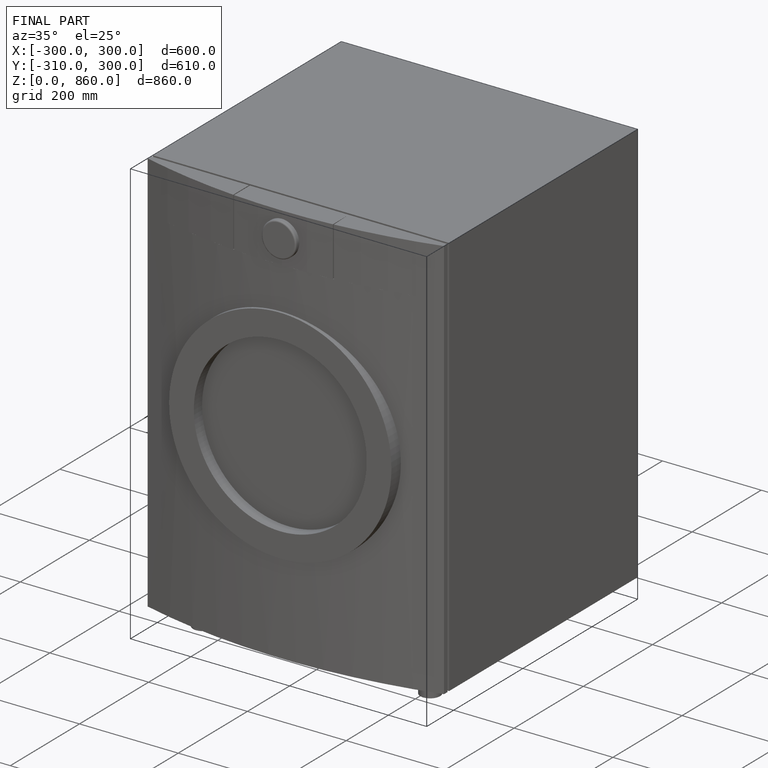
[diagram: finished part — iso view with bounding-box wireframe]
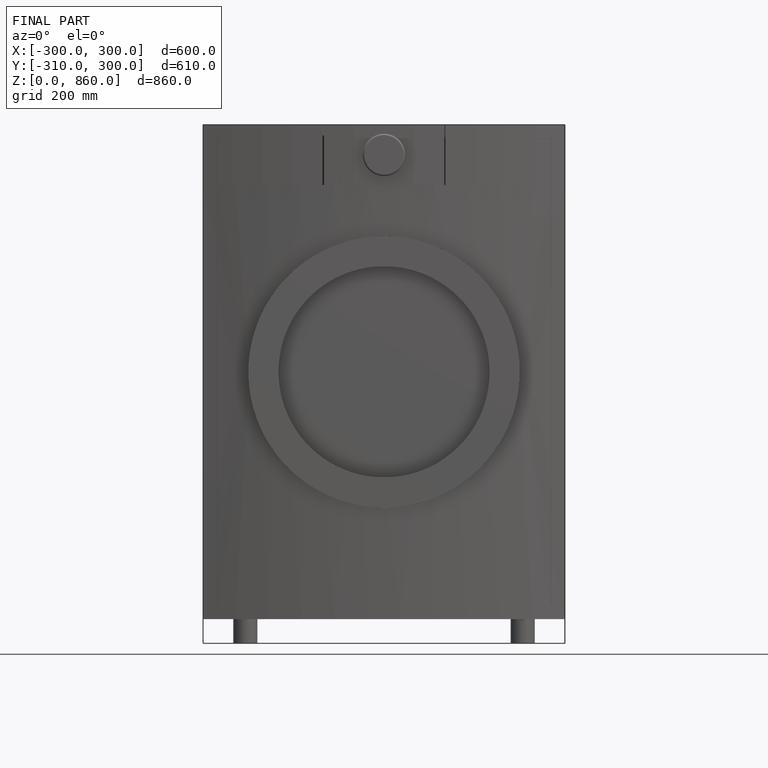
[diagram: finished part — front view with bounding-box wireframe]
